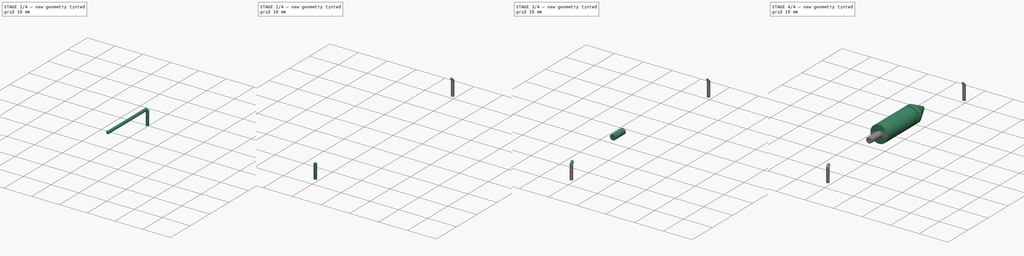
[diagram: build sequence overview — one tinted view per stage of 4, left to right]
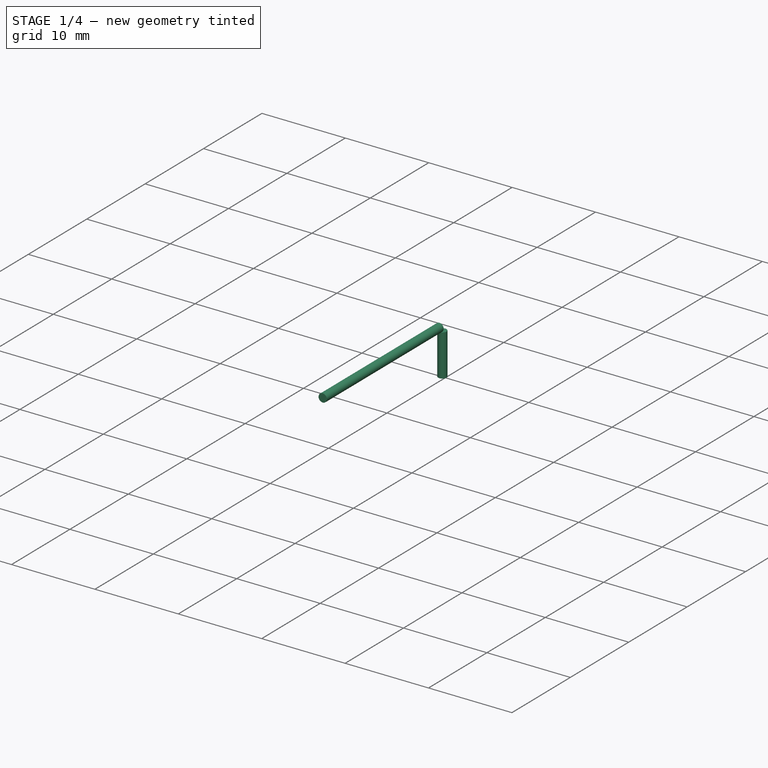
[diagram: stage 1 of 4 — iso view after this stage's code; geometry added in this stage tinted green]
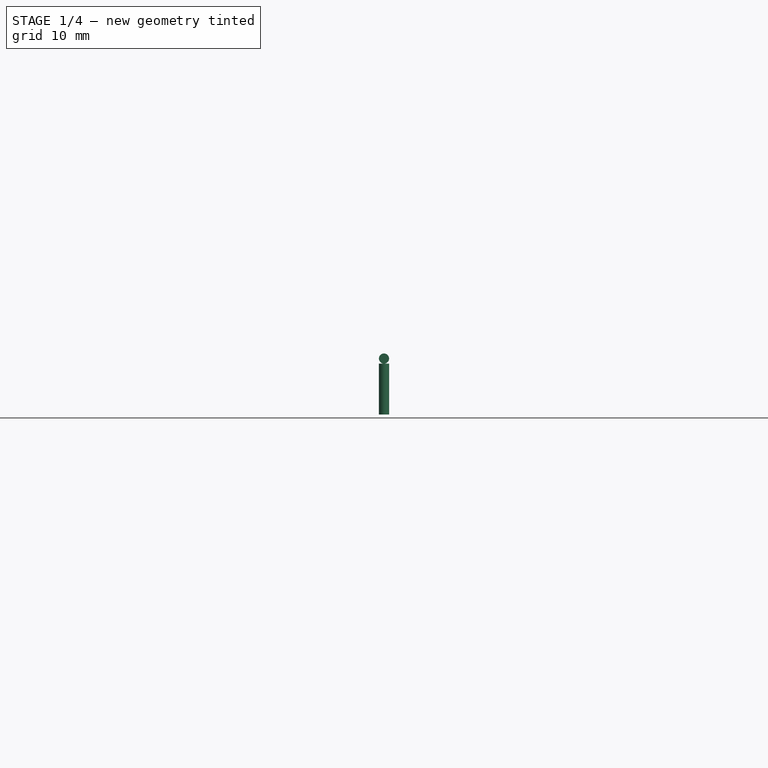
[diagram: stage 1 of 4 — front view after this stage's code; geometry added in this stage tinted green]
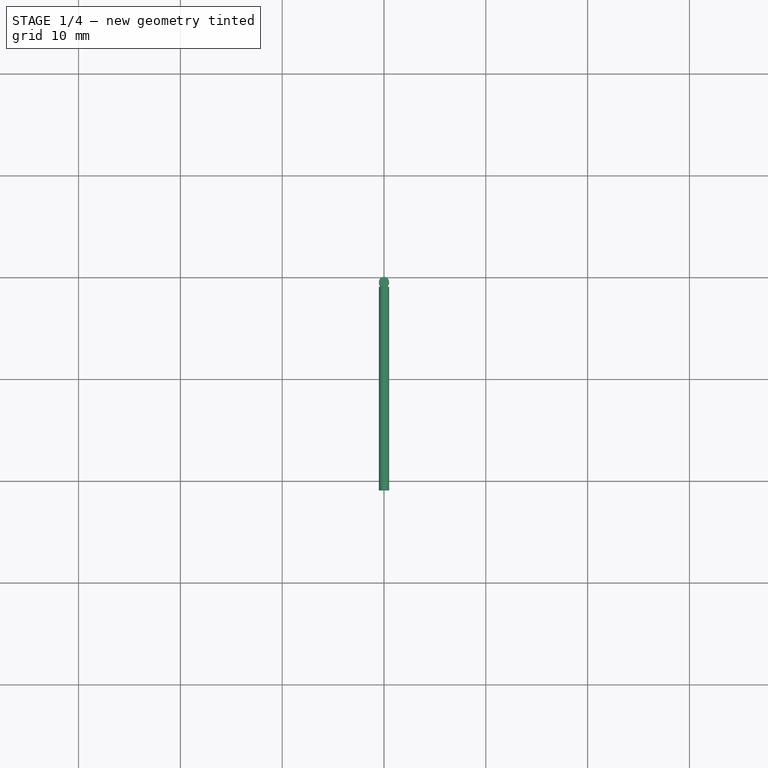
[diagram: stage 1 of 4 — top view after this stage's code; geometry added in this stage tinted green]
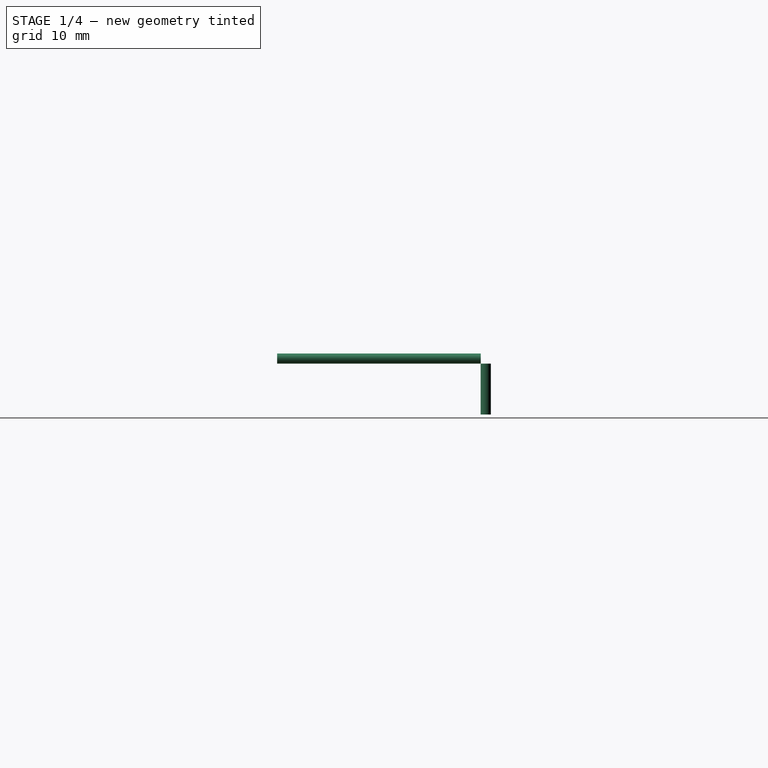
[diagram: stage 1 of 4 — right view after this stage's code; geometry added in this stage tinted green]
FCSTD DOCUMENT  (FreeCAD 1.0R39319 (Git))
Label: condesator(K50 – 29)
License: All rights reserved
LicenseURL: https://en.wikipedia.org/wiki/All_rights_reserved
objects: PartDesign::Body×7, PartDesign::AdditiveCylinder×5, PartDesign::AdditiveLoft×2, Sketcher::SketchObject×1, PartDesign::Revolution×1, PartDesign::AdditiveCone×1
note: 36 computed .brp shape members not serialized (recipe doc carries the construction recipe); baked Part::Feature solids carry a one-line shape summary decoded from their .brp

FEATURE [PartDesign::Body] Body004  label="Тіло004"
  AllowCompound = false
  Group = -> [Cylinder002,AdditiveLoft]
  Origin = -> Origin004
  Tip = -> AdditiveLoft
FEATURE [PartDesign::AdditiveCylinder] Cylinder003
  Angle = 360
  AttacherType = Attacher::AttachEngine3D
  AttachmentOffset = pos=(49.5,0,0.5) rot=(0,0,1;0rad)
  AttachmentSupport = -> [Y_Axis005]
  FirstAngle = 0
  Height = 5
  MapMode = 3
  Placement = pos=(1.1e-14,49.5,-0.5) rot=(0.707107,0.707107,0;3.14159rad)
  Radius = 0.5
  Refine = true
  SecondAngle = 0
  Suppressed = false
FEATURE [PartDesign::AdditiveCylinder] Cylinder004
  Angle = 360
  AttacherType = Attacher::AttachEngine3D
  AttachmentSupport = -> [Cone]
  FirstAngle = 0
  Height = 20
  MapMode = 5
  Placement = pos=(2.7e-15,29.0089,-1.07e-14) rot=(0.57735,0.57735,0.57735;4.18879rad)
  Radius = 0.5
  Refine = true
  SecondAngle = 0
  Suppressed = false
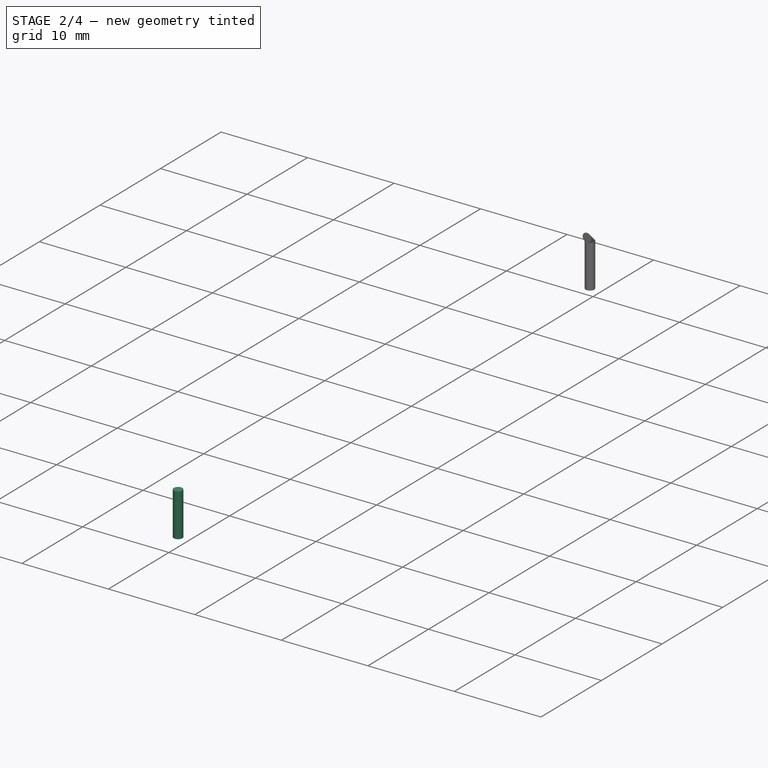
[diagram: stage 2 of 4 — iso view after this stage's code; geometry added in this stage tinted green]
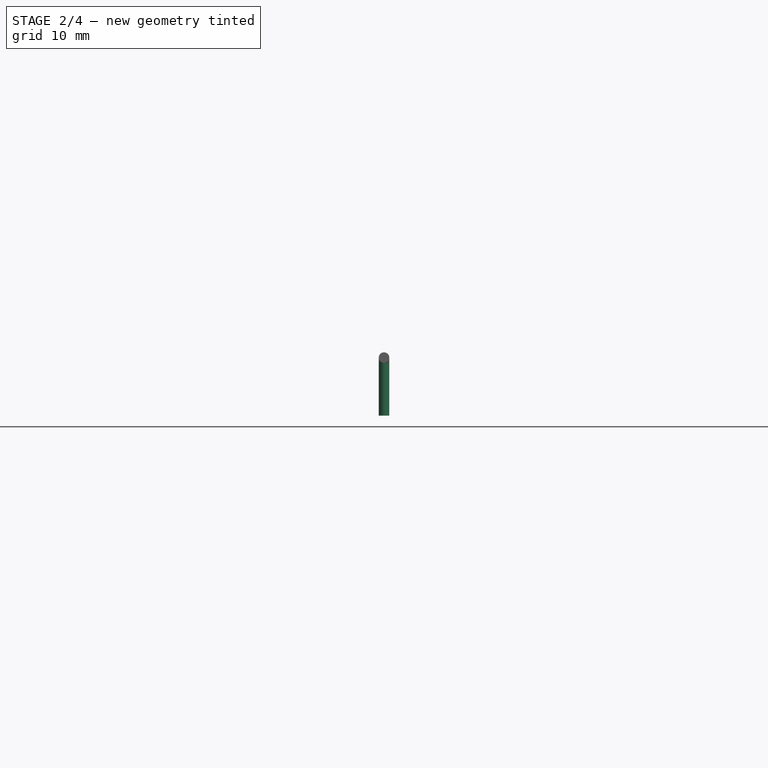
[diagram: stage 2 of 4 — front view after this stage's code; geometry added in this stage tinted green]
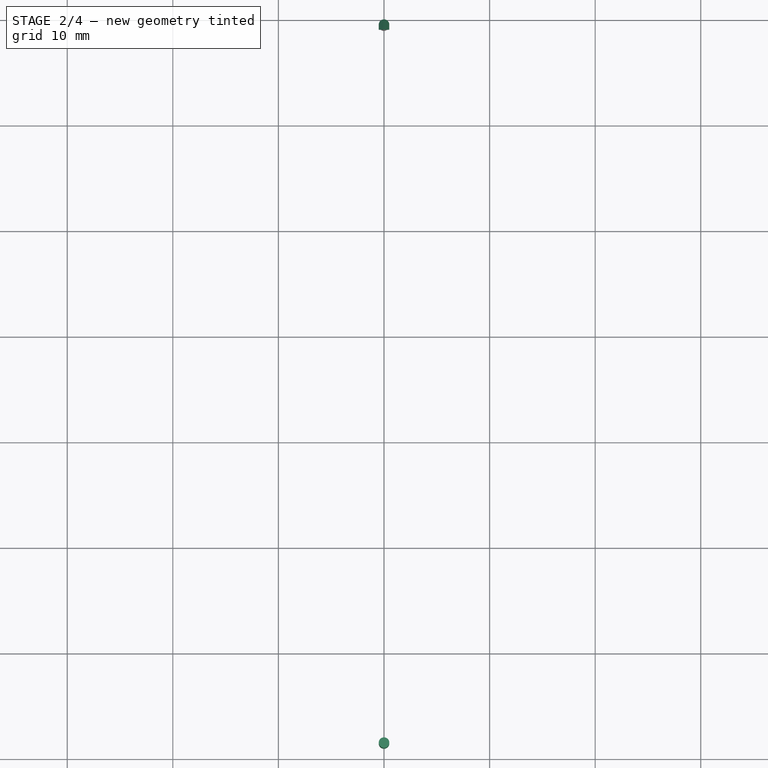
[diagram: stage 2 of 4 — top view after this stage's code; geometry added in this stage tinted green]
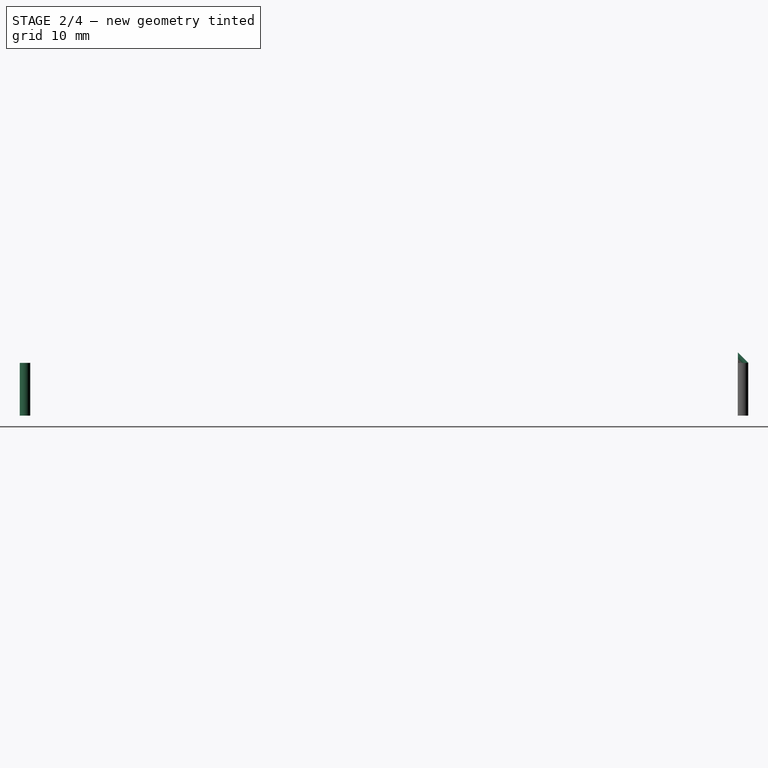
[diagram: stage 2 of 4 — right view after this stage's code; geometry added in this stage tinted green]
FEATURE [PartDesign::Body] Body003  label="Тіло003"
  AllowCompound = false
  Group = -> [Cylinder001]
  Origin = -> Origin003
  Tip = -> Cylinder001
FEATURE [PartDesign::AdditiveCylinder] Cylinder002
  Angle = 360
  AttacherType = Attacher::AttachEngine3D
  AttachmentOffset = pos=(-18.5,0,0.5) rot=(0,0,1;0rad)
  AttachmentSupport = -> [Y_Axis004]
  FirstAngle = 0
  Height = 5
  MapMode = 3
  Placement = pos=(-4.1e-15,-18.5,-0.5) rot=(0.707107,0.707107,0;3.14159rad)
  Radius = 0.5
  Refine = true
  SecondAngle = 0
  Suppressed = false
FEATURE [PartDesign::Body] Body006  label="Тіло006"
  AllowCompound = false
  Group = -> [Cylinder004]
  Origin = -> Origin006
  Tip = -> Cylinder004
FEATURE [PartDesign::AdditiveLoft] AdditiveLoft001
  BaseFeature = -> Cylinder003
  Closed = false
  Placement = pos=(1.1e-14,49.5,-0.5) rot=(0.707107,0.707107,0;3.14159rad)
  Profile = -> Cylinder003 [Face2]
  Refine = true
  Ruled = false
  Sections = -> [Cylinder004]
  Suppressed = false
FEATURE [PartDesign::Body] Body005  label="Тіло005"
  AllowCompound = false
  Group = -> [Cylinder003,AdditiveLoft001]
  Origin = -> Origin005
  Tip = -> AdditiveLoft001
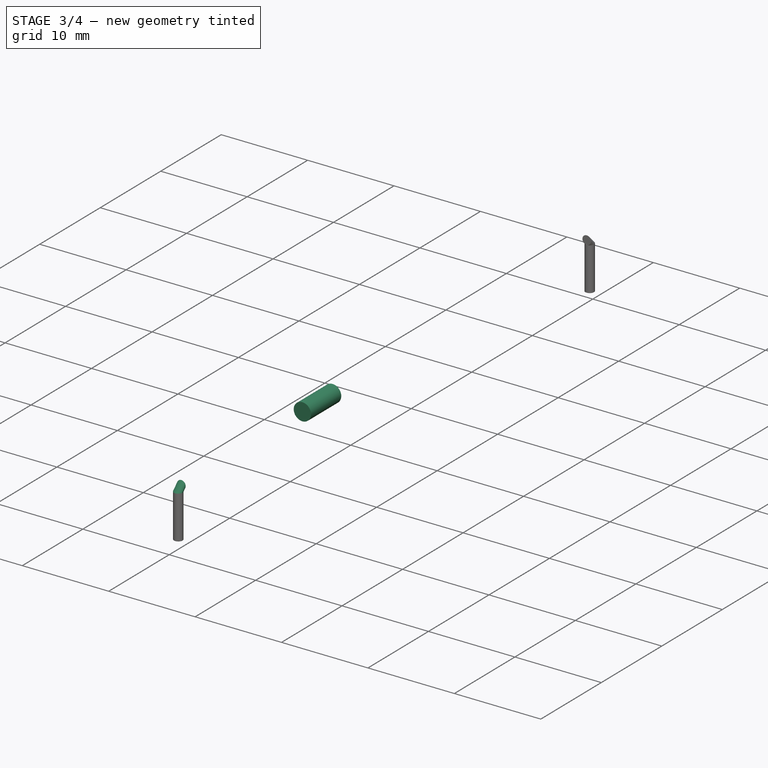
[diagram: stage 3 of 4 — iso view after this stage's code; geometry added in this stage tinted green]
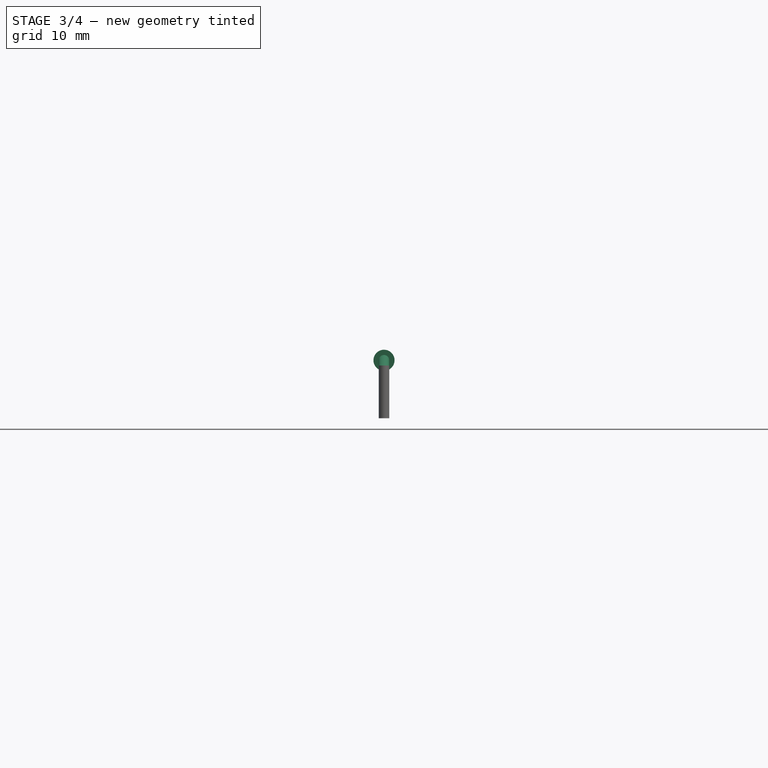
[diagram: stage 3 of 4 — front view after this stage's code; geometry added in this stage tinted green]
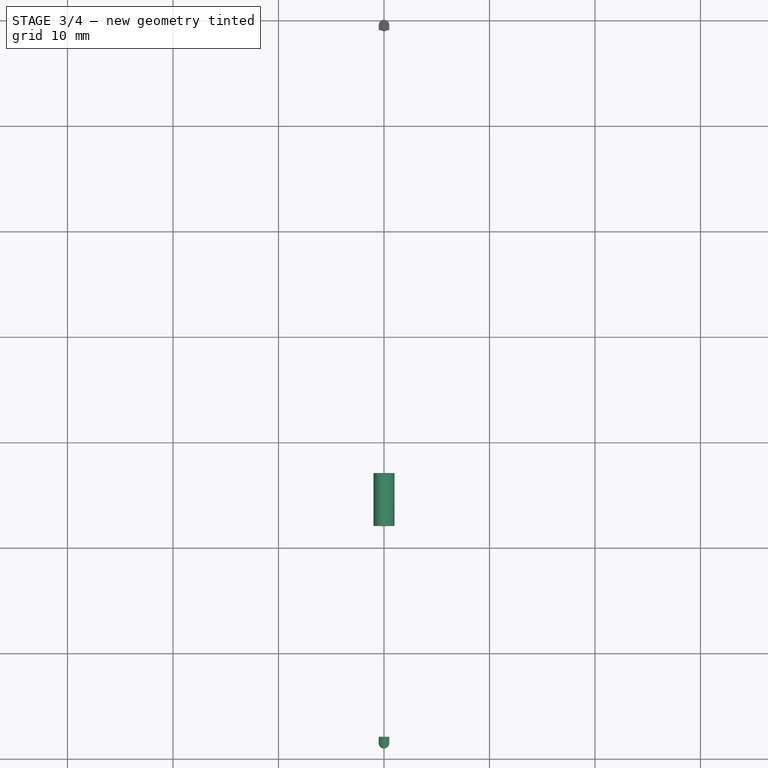
[diagram: stage 3 of 4 — top view after this stage's code; geometry added in this stage tinted green]
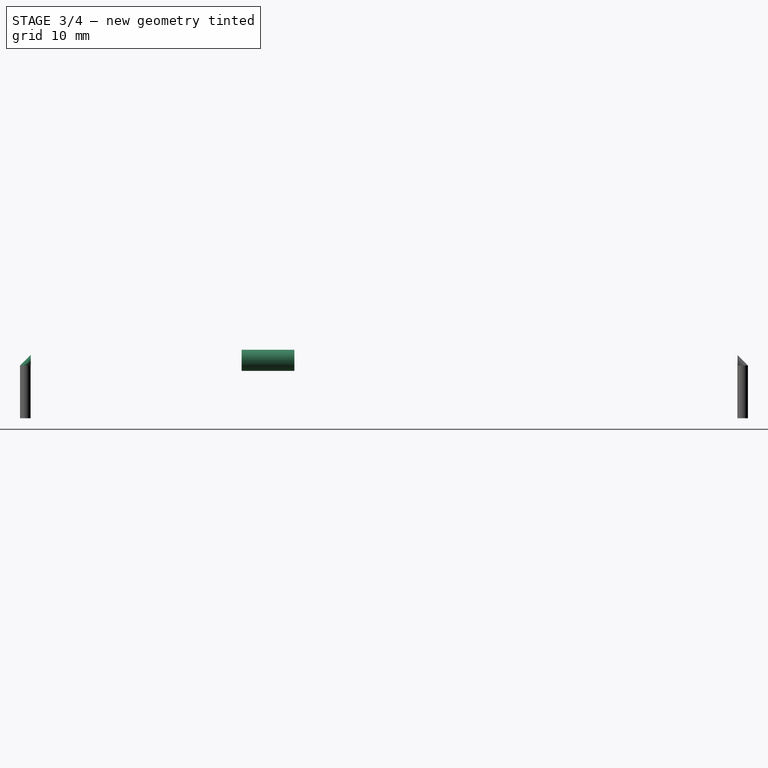
[diagram: stage 3 of 4 — right view after this stage's code; geometry added in this stage tinted green]
FEATURE [PartDesign::Body] Body001  label="Тіло001"
  AllowCompound = false
  Group = -> [Cone]
  Origin = -> Origin001
  Tip = -> Cone
FEATURE [PartDesign::AdditiveCylinder] Cylinder
  Angle = 360
  AttacherType = Attacher::AttachEngine3D
  AttachmentSupport = -> [Revolution]
  FirstAngle = 0
  Height = 5
  MapMode = 5
  Placement = pos=(8e-16,7.0089,-3.1e-15) rot=(0.57735,0.57735,-0.57735;2.0944rad)
  Radius = 1
  Refine = true
  SecondAngle = 0
  Suppressed = false
FEATURE [PartDesign::Body] Body002  label="Тіло002"
  AllowCompound = false
  Group = -> [Cylinder]
  Origin = -> Origin002
  Tip = -> Cylinder
FEATURE [PartDesign::AdditiveCylinder] Cylinder001
  Angle = 360
  AttacherType = Attacher::AttachEngine3D
  AttachmentSupport = -> [Cylinder]
  FirstAngle = 0
  Height = 20
  MapMode = 5
  Placement = pos=(8e-16,2.0089,-3.1e-15) rot=(0.57735,0.57735,-0.57735;2.0944rad)
  Radius = 0.5
  Refine = true
  SecondAngle = 0
  Suppressed = false
FEATURE [PartDesign::AdditiveLoft] AdditiveLoft
  BaseFeature = -> Cylinder002
  Closed = false
  Placement = pos=(-4.1e-15,-18.5,-0.5) rot=(0.707107,0.707107,0;3.14159rad)
  Profile = -> Cylinder002 [Edge2,Face2]
  Refine = true
  Ruled = false
  Sections = -> [Cylinder001]
  Suppressed = false
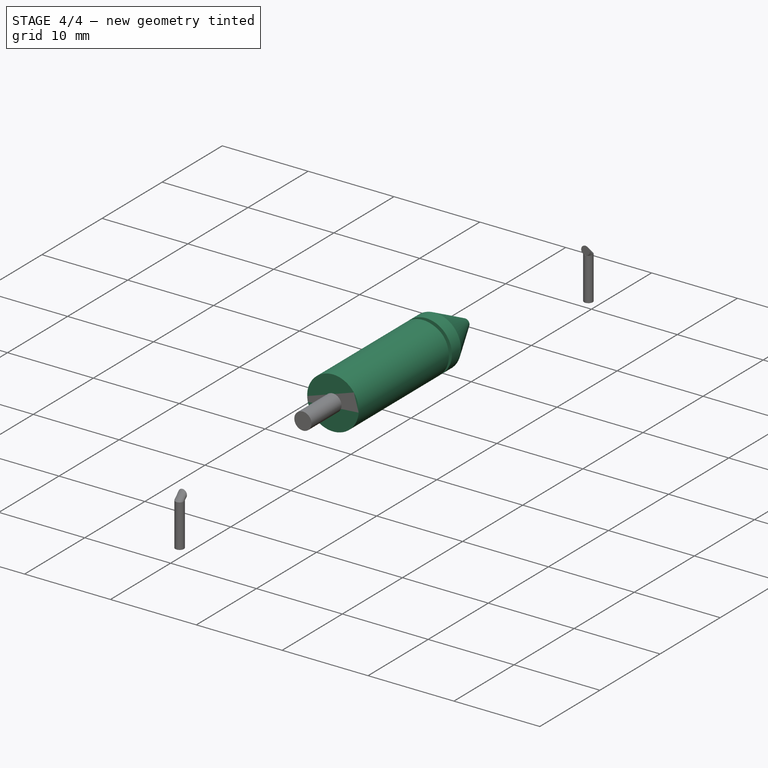
[diagram: stage 4 of 4 — iso view after this stage's code; geometry added in this stage tinted green]
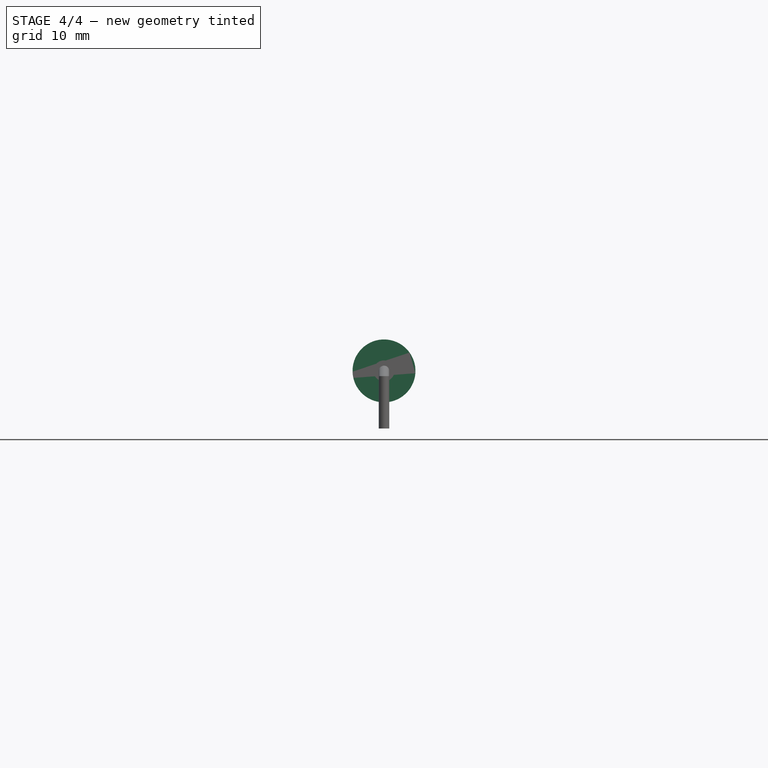
[diagram: stage 4 of 4 — front view after this stage's code; geometry added in this stage tinted green]
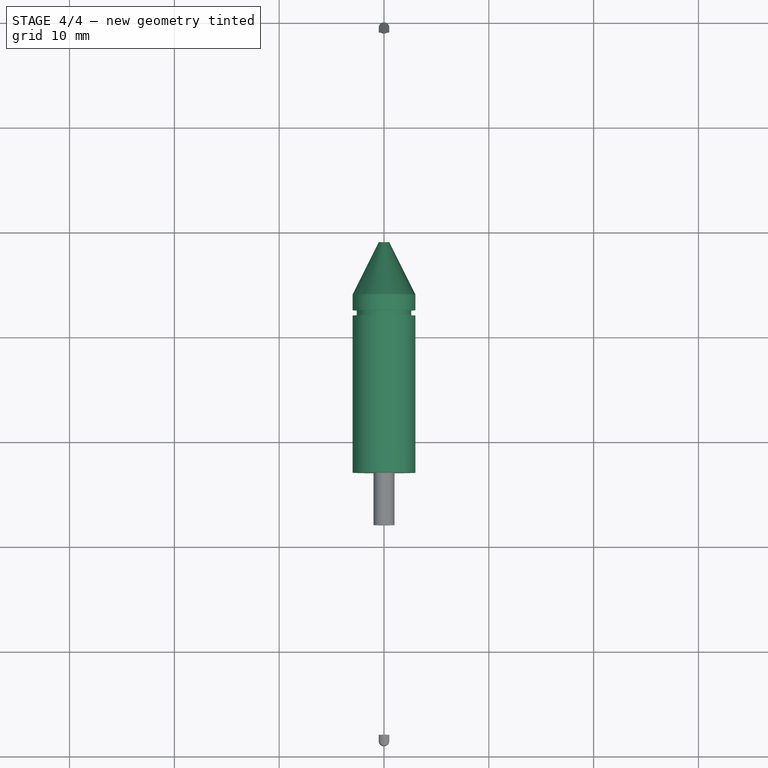
[diagram: stage 4 of 4 — top view after this stage's code; geometry added in this stage tinted green]
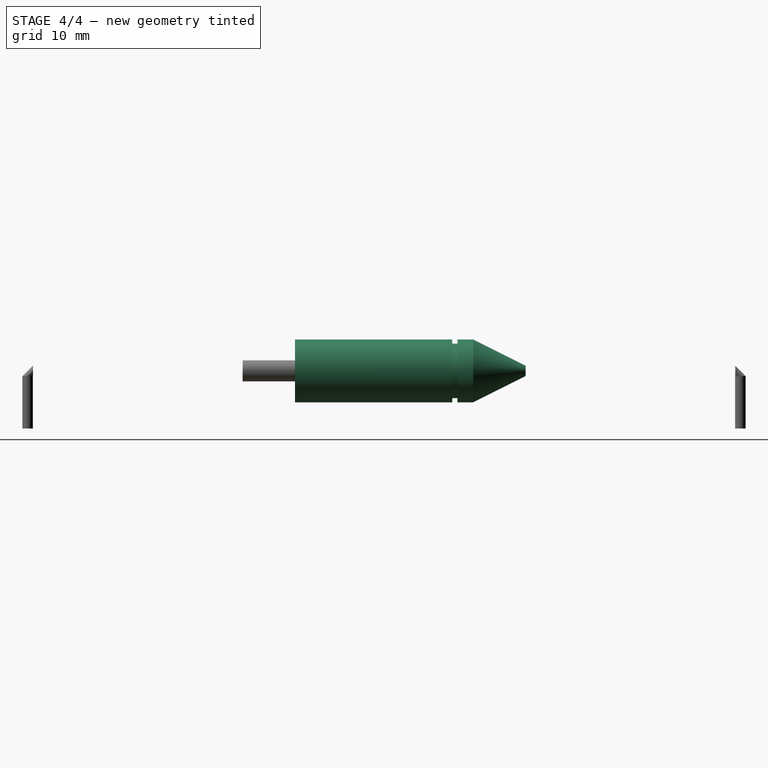
[diagram: stage 4 of 4 — right view after this stage's code; geometry added in this stage tinted green]
FEATURE [Sketcher::SketchObject] Sketch
  ArcFitTolerance = 1e-06
  AttachmentSupport = -> [YZ_Plane]
  FullyConstrained = false
  MakeInternals = false
  MapMode = 5
  Placement = pos=(0,0,0) rot=(0.57735,0.57735,0.57735;2.0944rad)
  sketch-geometry (13):
    g0: LineSegment [constr] StartX=-17.9911 StartY=0 StartZ=0 EndX=49.0089 EndY=0 EndZ=0
    g1: LineSegment StartX=7.0089 StartY=0 StartZ=0 EndX=22.0089 EndY=0 EndZ=0
    g2: LineSegment StartX=22.0089 StartY=0 StartZ=0 EndX=22.0089 EndY=3 EndZ=0
    g3: LineSegment StartX=22.0089 StartY=3 StartZ=0 EndX=7.0089 EndY=3 EndZ=0
    g4: LineSegment StartX=7.0089 StartY=3 StartZ=0 EndX=7.0089 EndY=0 EndZ=0
    g5: LineSegment StartX=22.0089 StartY=0 StartZ=0 EndX=22.5089 EndY=0 EndZ=0
    g6: LineSegment StartX=22.5089 StartY=0 StartZ=0 EndX=22.5089 EndY=2.6 EndZ=0
    g7: LineSegment StartX=22.5089 StartY=2.6 StartZ=0 EndX=22.0089 EndY=2.6 EndZ=0
    g8: LineSegment StartX=22.0089 StartY=2.6 StartZ=0 EndX=22.0089 EndY=0 EndZ=0
    g9: LineSegment StartX=22.5089 StartY=0 StartZ=0 EndX=24.0089 EndY=0 EndZ=0
    g10: LineSegment StartX=24.0089 StartY=0 StartZ=0 EndX=24.0089 EndY=3 EndZ=0
    g11: LineSegment StartX=24.0089 StartY=3 StartZ=0 EndX=22.5089 EndY=3 EndZ=0
    g12: LineSegment StartX=22.5089 StartY=3 StartZ=0 EndX=22.5089 EndY=0 EndZ=0
  constraints (36):
    c: Distance(g0) = 67
    c: PointOnObject(g0,g-1)
    c: PointOnObject(g0,g-1)
    c: PointOnObject(g1,g0)
    c: Coincident(g1,g2)
    c: Coincident(g2,g3)
    c: Coincident(g3,g4)
    c: Coincident(g4,g1)
    c: Horizontal(g1)
    c: Horizontal(g3)
    c: Vertical(g2)
    c: Vertical(g4)
    c: Distance(g2,g4) = 15
    c: Distance(g1,g3) = 3
    c: Coincident(g5,g6)
    c: Coincident(g6,g7)
    c: Coincident(g7,g8)
    c: Coincident(g8,g5)
    c: Horizontal(g5)
    c: Horizontal(g7)
    c: Vertical(g6)
    c: Vertical(g8)
    c: Distance(g6,g8) = 0.5
    c: Distance(g5,g7) = 2.6
    c: Coincident(g5,g1)
    c: Coincident(g9,g10)
    c: Coincident(g10,g11)
    c: Coincident(g11,g12)
    c: Coincident(g12,g9)
    c: Horizontal(g9)
    c: Horizontal(g11)
    c: Vertical(g10)
    c: Vertical(g12)
    c: Distance(g10,g12) = 1.5
    c: Distance(g9,g11) = 3
    c: Coincident(g9,g5)
FEATURE [PartDesign::Revolution] Revolution
  Angle = 360
  Angle2 = 60
  Axis = (1e-16,1,-1e-16)
  Base = (0,0,0)
  Placement = pos=(0,0,0) rot=(1,1,1;2.0944rad)
  Profile = -> Sketch
  ReferenceAxis = -> Y_Axis
  Refine = true
  Suppressed = false
  Type = 0
FEATURE [PartDesign::Body] Body  label="Тіло"
  AllowCompound = false
  Group = -> [Sketch,Revolution]
  Origin = -> Origin
  Tip = -> Revolution
FEATURE [PartDesign::AdditiveCone] Cone
  Angle = 360
  AttacherType = Attacher::AttachEngine3D
  AttachmentSupport = -> [Revolution]
  Height = 5
  MapMode = 5
  Placement = pos=(2.7e-15,24.0089,-1.07e-14) rot=(0.57735,0.57735,0.57735;4.18879rad)
  Radius1 = 3
  Radius2 = 0.5
  Refine = true
  Suppressed = false
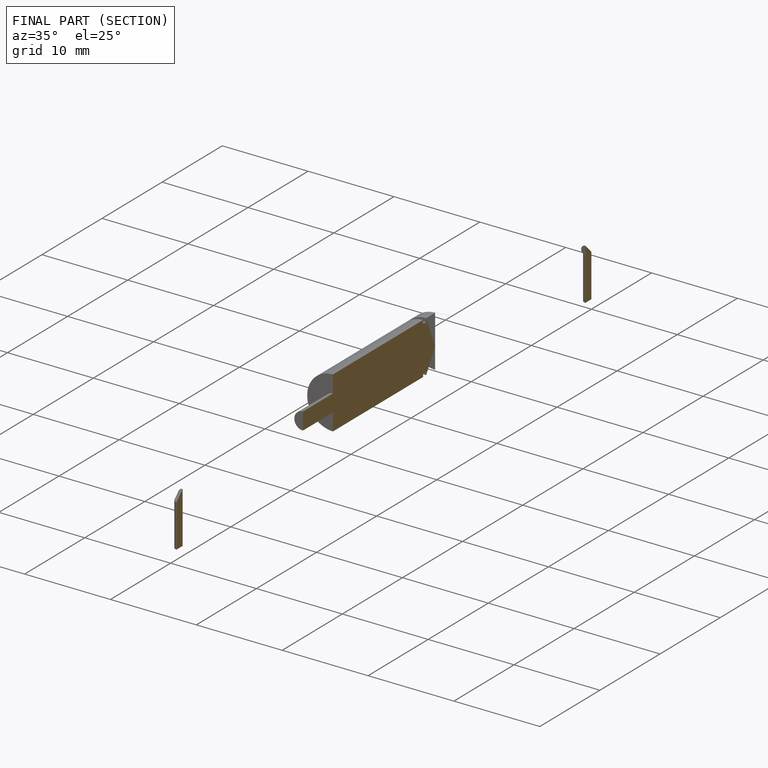
[diagram: finished part — half-section view (interior)]
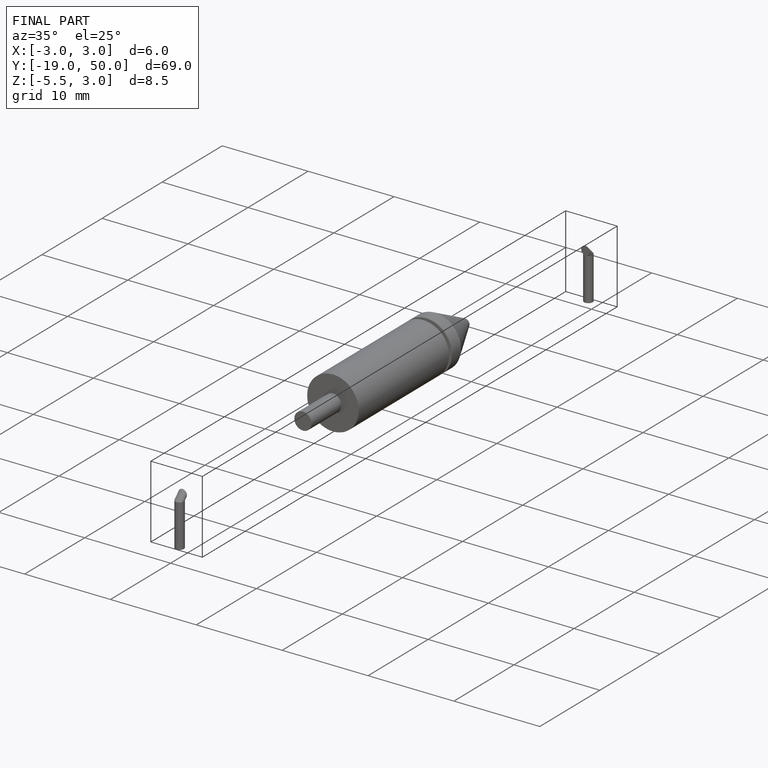
[diagram: finished part — iso view with bounding-box wireframe]
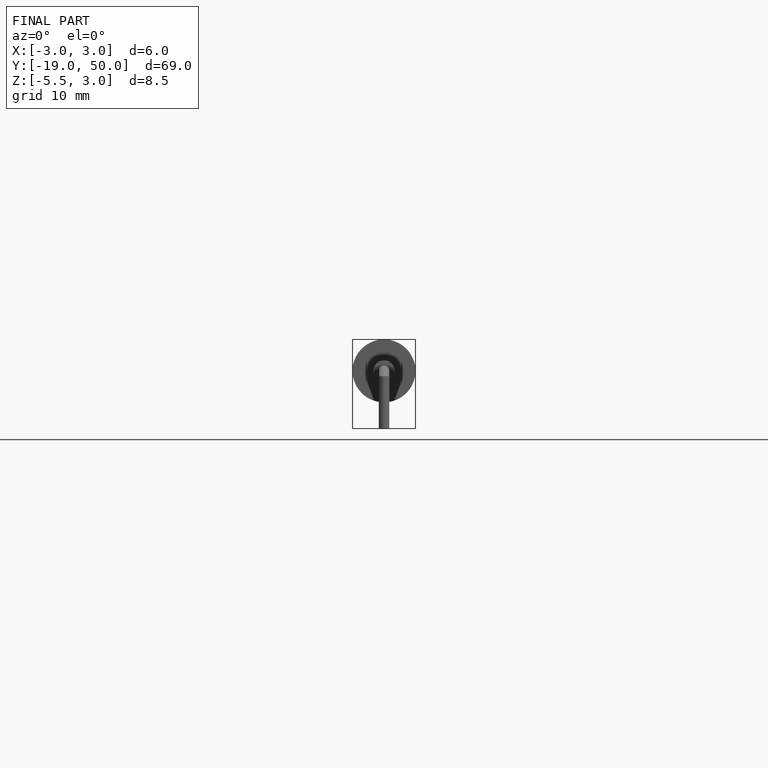
[diagram: finished part — front view with bounding-box wireframe]
